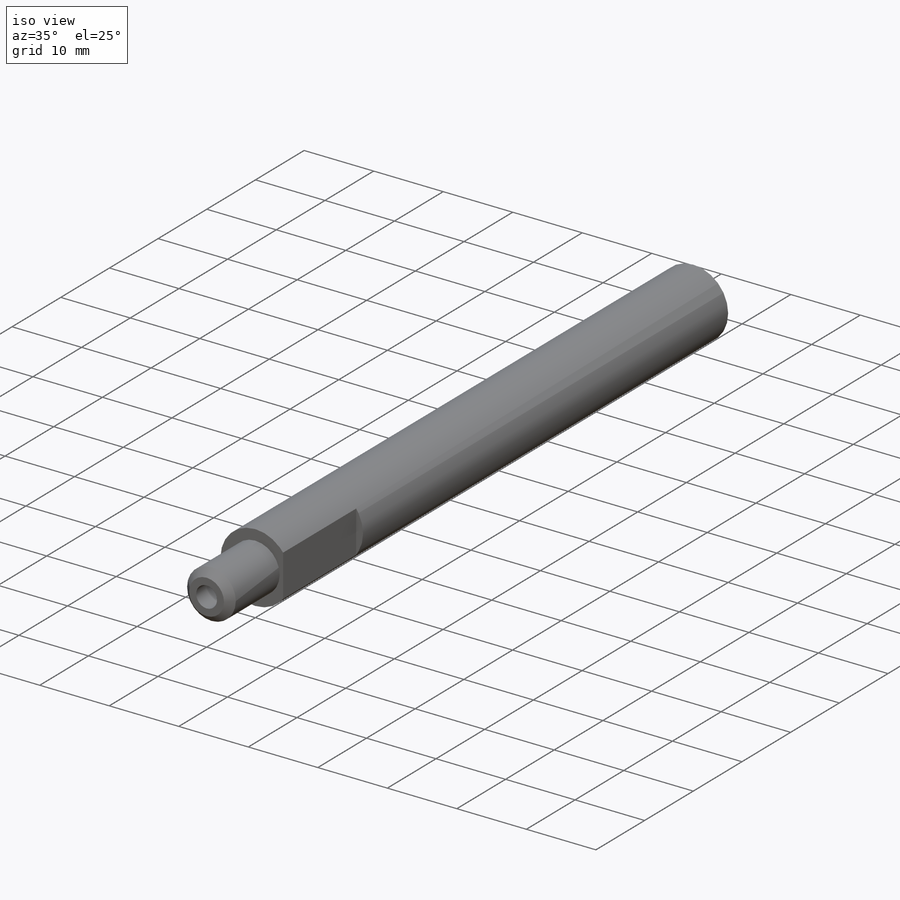
[diagram: iso view]
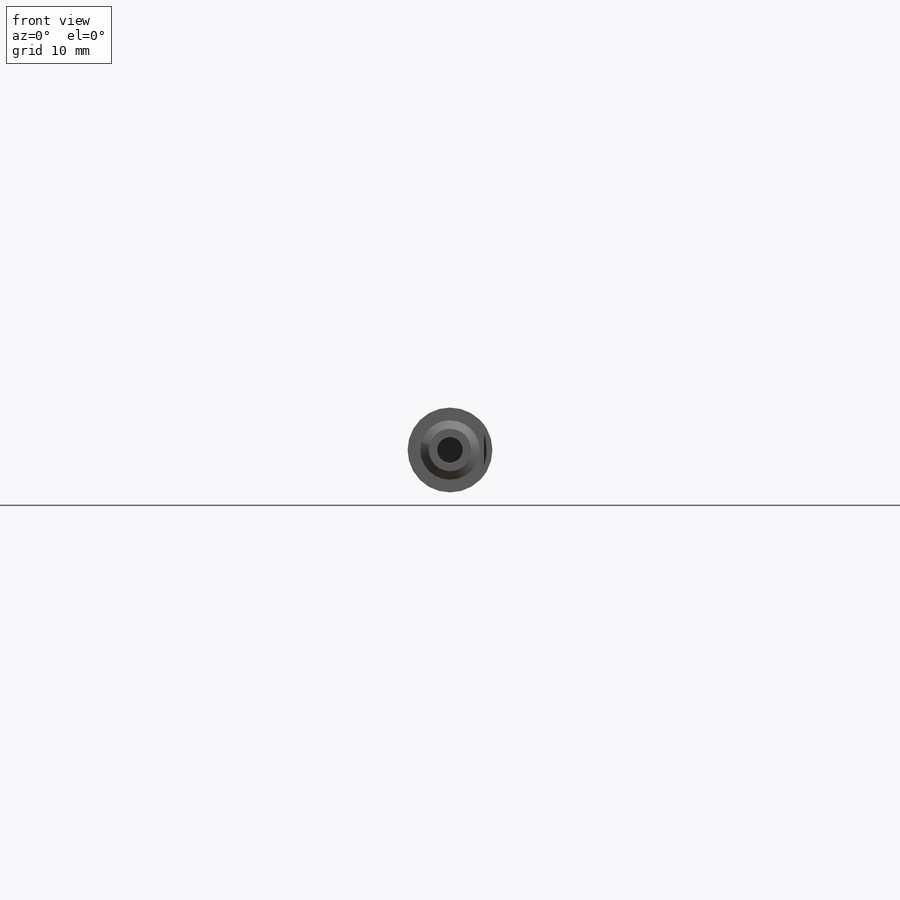
[diagram: front view]
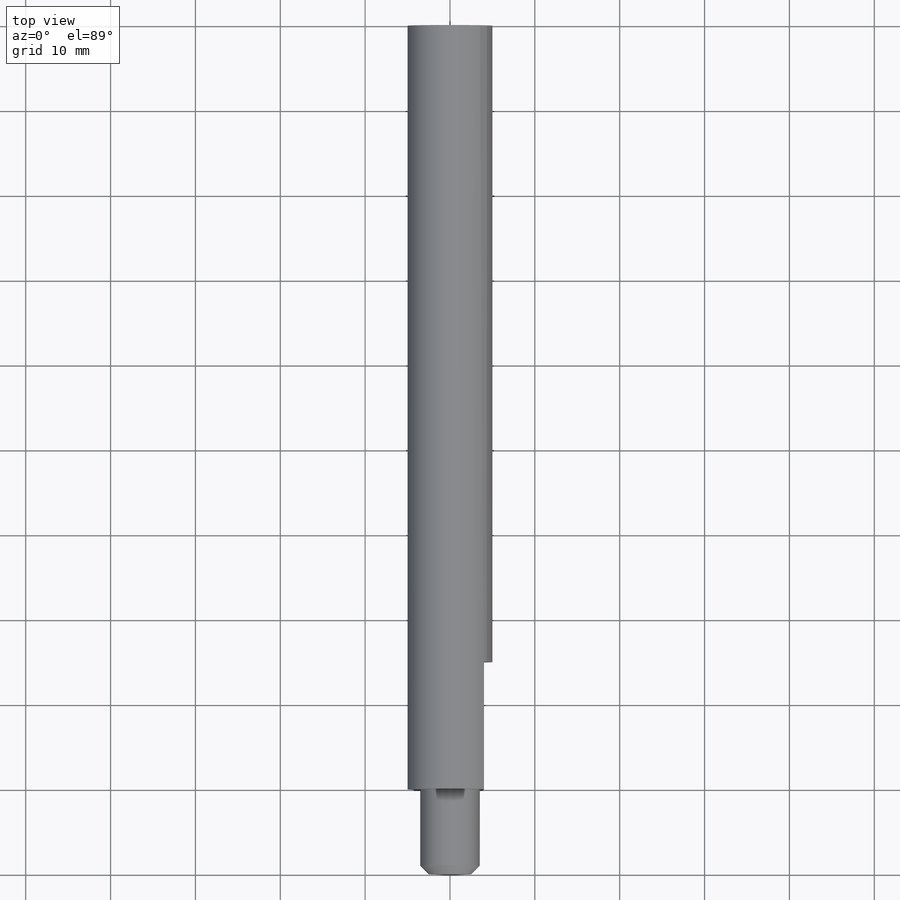
[diagram: top view]
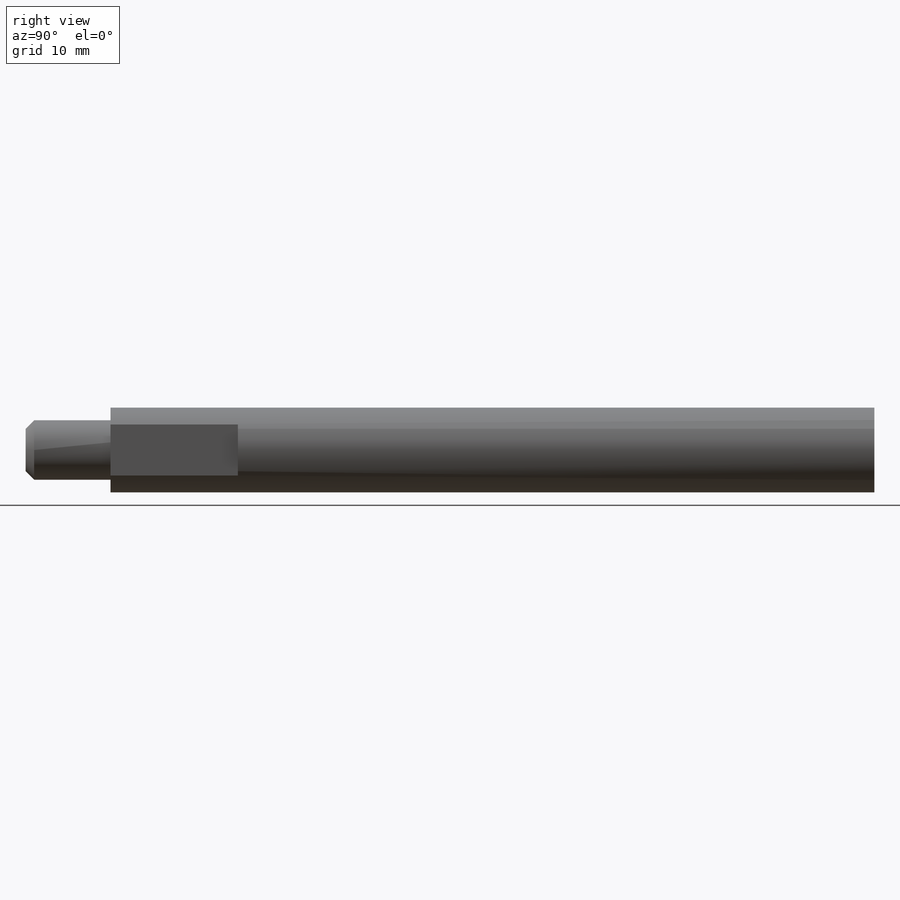
[diagram: right view]
SOLIDWORKS PART (.sldprt)
format: sldprt  version: not decoded by parser v0  size: 158,720 bytes
history: native  units: mm
features: sketch x5, hole x2, material x1, extrude x1, cut_extrude x1, chamfer x1 (+12 scaffold rows collapsed)
feature tree (23):
  scaffold x12  (default folders/planes/origin — collapsed)
  material  "Material <not specified>"
  sketch  "Sketch1"  dims[D1=10.0mm]
  extrude  "Base Extrude"  Depth=100mm
  sketch  "Sketch5"  dims[D1=7.0mm]
  cut_extrude  "Front Cut"  Depth=10mm
  sketch  "Sketch2"  dims[D1=3.0mm]
  hole  "Front Hole"  Diameter=10mm
  chamfer  "Chamfer1"  Distance=1mm Angle=45deg
  sketch  "Sketch3"  dims[c1.D1=6.0mm c2.D1=15.0mm]
  sketch  "Sketch4"  dims[D1=4.0mm]
  hole  "Back Hole"  Diameter=20mm
decode coverage: 10 of 10 modeling features carry decoded parameters
note: suppression state not decoded; provenance and decode notes live in map.json
